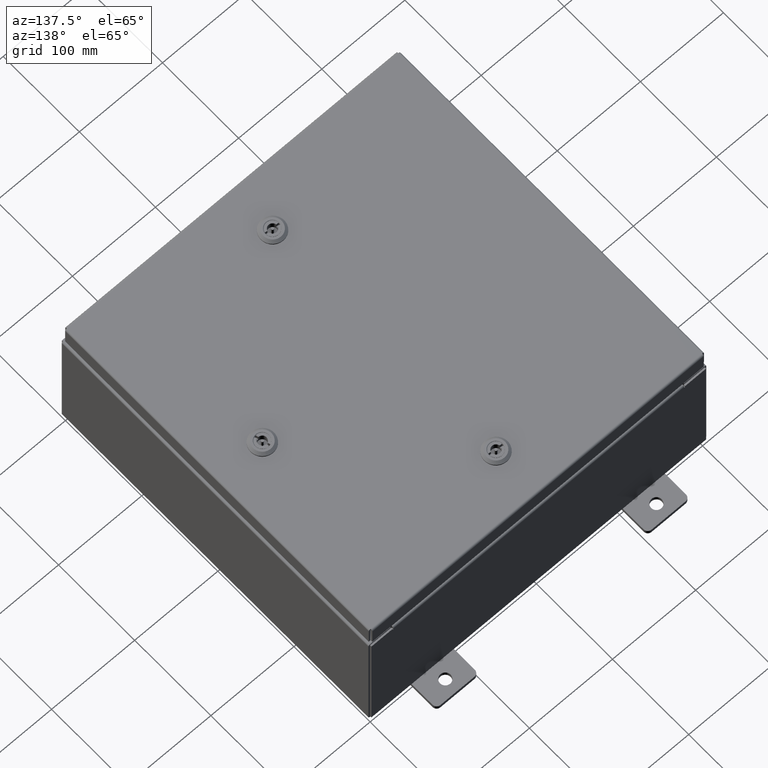
[diagram: clean part render]
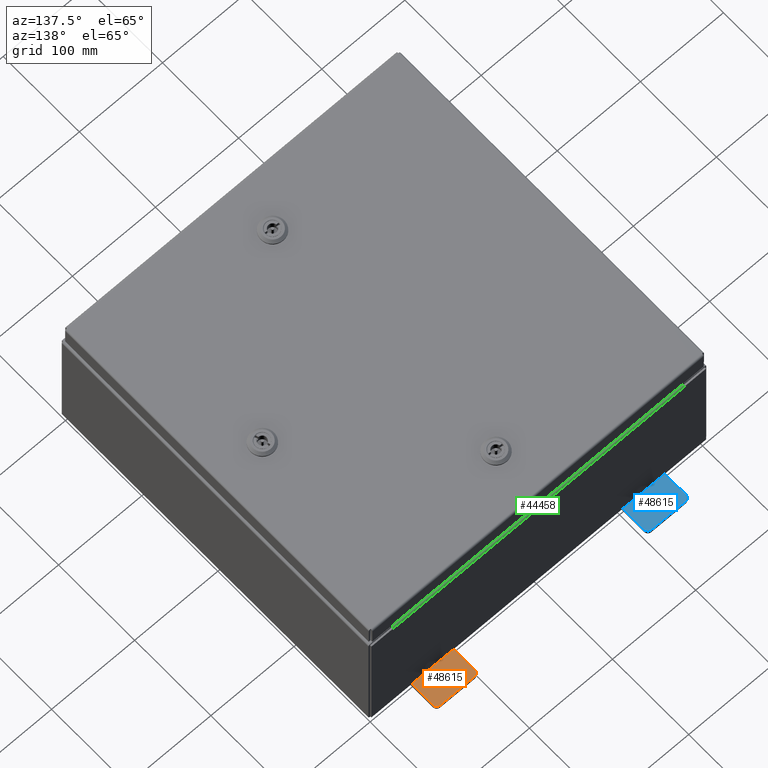
[diagram: same view with three faces highlighted in distinct colors, each labeled with its STEP entity id]
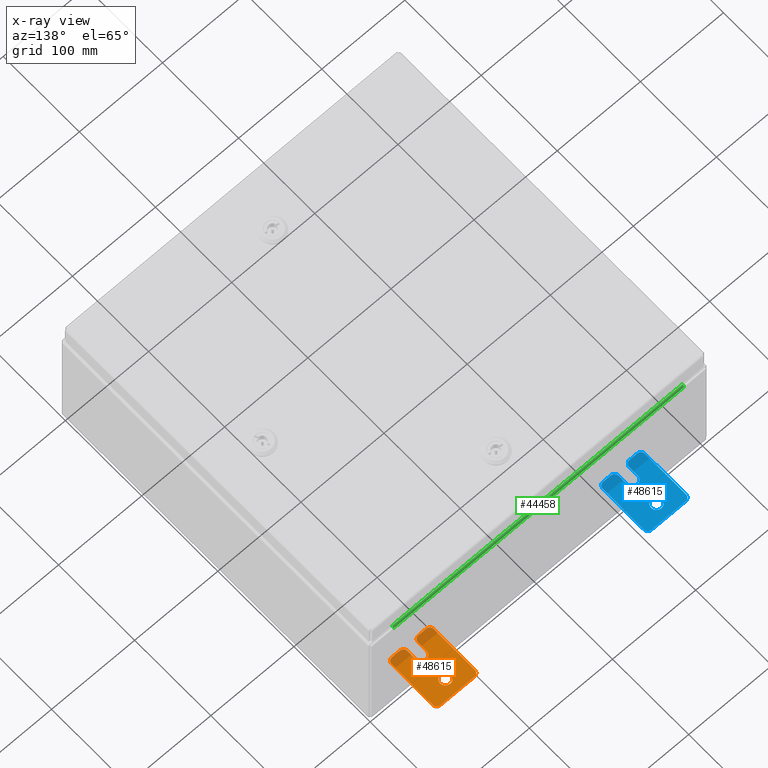
[diagram: x-ray of the same camera — body ghosted, the three highlighted faces saturated]
A machine part, auxiliary view with three faces highlighted in distinct colors.
The next image is the same camera in x-ray (body ghosted, the three faces saturated) — at least one of them is partly hidden behind the body in this view.
Their STEP definitions:

[orange] entity #48615 — the highlighted planar face has unit normal (0, 0, 1).
#376 = DIRECTION ( 'NONE',  ( 0.0000000000000000000, 1.639108796198553600E-015, 1.000000000000000000 ) ) ;
#781 = VERTEX_POINT ( 'NONE', #40573 ) ;
#939 = VERTEX_POINT ( 'NONE', #14107 ) ;
#1094 = VERTEX_POINT ( 'NONE', #38783 ) ;
#1914 = ORIENTED_EDGE ( 'NONE', *, *, #51974, .T. ) ;
#2067 = CARTESIAN_POINT ( 'NONE',  ( 0.0000000000000000000, 1.059999999999996300, 0.8099999999999938400 ) ) ;
#2090 = CARTESIAN_POINT ( 'NONE',  ( 0.0000000000000000000, -1.250000000000004700, -0.4400000000000002200 ) ) ;
#2940 = AXIS2_PLACEMENT_3D ( 'NONE', #6779, #9118, #8405 ) ;
#3745 = LINE ( 'NONE', #13815, #40833 ) ;
#4010 = DIRECTION ( 'NONE',  ( -0.0000000000000000000, 0.0000000000000000000, -1.000000000000000000 ) ) ;
#4321 = LINE ( 'NONE', #7290, #54153 ) ;
#4420 = EDGE_CURVE ( 'NONE', #55474, #61561, #31152, .T. ) ;
#4504 = EDGE_CURVE ( 'NONE', #27140, #24441, #19826, .T. ) ;
#5197 = AXIS2_PLACEMENT_3D ( 'NONE', #27364, #27150, #26948 ) ;
#5300 = AXIS2_PLACEMENT_3D ( 'NONE', #25176, #58881, #30043 ) ;
#6397 = ORIENTED_EDGE ( 'NONE', *, *, #45396, .T. ) ;
#6748 = LINE ( 'NONE', #38320, #56576 ) ;
#6779 = CARTESIAN_POINT ( 'NONE',  ( 0.0000000000000000000, -1.060000000000001600, 0.8099999999999978300 ) ) ;
#6940 = DIRECTION ( 'NONE',  ( 0.0000000000000000000, 0.0000000000000000000, -1.000000000000000000 ) ) ;
#7290 = CARTESIAN_POINT ( 'NONE',  ( 4.780733988912460100E-016, -0.6249999999999993300, -0.2499999999999993900 ) ) ;
#7335 = LINE ( 'NONE', #45862, #44422 ) ;
#7629 = CARTESIAN_POINT ( 'NONE',  ( 3.910348609313009100E-016, 0.6249999999999992200, -0.2499999999999999200 ) ) ;
#8172 = CARTESIAN_POINT ( 'NONE',  ( 0.0000000000000000000, -1.060000000000003400, -0.4400000000000005000 ) ) ;
#8405 = DIRECTION ( 'NONE',  ( 0.0000000000000000000, 0.0000000000000000000, -1.000000000000000000 ) ) ;
#9093 = FACE_BOUND ( 'NONE', #50554, .T. ) ;
#9118 = DIRECTION ( 'NONE',  ( 1.000000000000000000, 0.0000000000000000000, -0.0000000000000000000 ) ) ;
#9145 = CIRCLE ( 'NONE', #5300, 0.2499999999999999200 ) ;
#9423 = CARTESIAN_POINT ( 'NONE',  ( 1.928684683526972300E-016, -1.060000000000002100, 0.2500000000000005000 ) ) ;
#9869 = LINE ( 'NONE', #50349, #24269 ) ;
#10481 = EDGE_CURVE ( 'NONE', #61561, #27140, #7335, .T. ) ;
#10588 = CIRCLE ( 'NONE', #19626, 0.1900000000000011100 ) ;
#10762 = EDGE_CURVE ( 'NONE', #31649, #12635, #23954, .T. ) ;
#11031 = LINE ( 'NONE', #44166, #35268 ) ;
#11205 = ORIENTED_EDGE ( 'NONE', *, *, #60182, .T. ) ;
#12112 = DIRECTION ( 'NONE',  ( -6.556435184794182400E-016, -1.000000000000000000, -1.639108796198545600E-016 ) ) ;
#12635 = VERTEX_POINT ( 'NONE', #22544 ) ;
#12669 = AXIS2_PLACEMENT_3D ( 'NONE', #18521, #57292, #15808 ) ;
#13035 = DIRECTION ( 'NONE',  ( 0.0000000000000000000, 0.0000000000000000000, -1.000000000000000000 ) ) ;
#13705 = ORIENTED_EDGE ( 'NONE', *, *, #4504, .T. ) ;
#13815 = CARTESIAN_POINT ( 'NONE',  ( 0.0000000000000000000, -1.250000000000002200, 0.9999999999999992200 ) ) ;
#14107 = CARTESIAN_POINT ( 'NONE',  ( 0.0000000000000000000, 1.249999999999994700, -0.8100000000000092700 ) ) ;
#14184 = DIRECTION ( 'NONE',  ( 6.556435184794182400E-016, 1.000000000000000000, 0.0000000000000000000 ) ) ;
#14620 = ORIENTED_EDGE ( 'NONE', *, *, #50343, .T. ) ;
#14811 = DIRECTION ( 'NONE',  ( 1.000000000000000000, 0.0000000000000000000, -0.0000000000000000000 ) ) ;
#15808 = DIRECTION ( 'NONE',  ( 0.0000000000000000000, 0.0000000000000000000, -1.000000000000000000 ) ) ;
#16525 = DIRECTION ( 'NONE',  ( 0.0000000000000000000, -1.000000000000000000, 1.639108796198558100E-015 ) ) ;
#17126 = AXIS2_PLACEMENT_3D ( 'NONE', #8172, #42048, #13035 ) ;
#17256 = CIRCLE ( 'NONE', #53220, 0.1900000000000011100 ) ;
#17263 = EDGE_CURVE ( 'NONE', #23851, #19299, #37745, .T. ) ;
#17445 = AXIS2_PLACEMENT_3D ( 'NONE', #52897, #23973, #57686 ) ;
#17730 = CARTESIAN_POINT ( 'NONE',  ( 4.780733988912460100E-016, -0.6249999999999993300, -0.2499999999999998600 ) ) ;
#18188 = PLANE ( 'NONE',  #20768 ) ;
#18521 = CARTESIAN_POINT ( 'NONE',  ( 0.0000000000000000000, -1.060000000000002100, 0.4400000000000016700 ) ) ;
#18524 = ORIENTED_EDGE ( 'NONE', *, *, #43755, .T. ) ;
#18672 = CARTESIAN_POINT ( 'NONE',  ( 0.0000000000000000000, 1.249999999999997300, 0.8099999999999935000 ) ) ;
#19299 = VERTEX_POINT ( 'NONE', #2090 ) ;
#19626 = AXIS2_PLACEMENT_3D ( 'NONE', #43800, #14811, #48675 ) ;
#19826 = CIRCLE ( 'NONE', #12669, 0.1900000000000011400 ) ;
#20462 = FACE_OUTER_BOUND ( 'NONE', #48714, .T. ) ;
#20768 = AXIS2_PLACEMENT_3D ( 'NONE', #37634, #32942, #4010 ) ;
#20818 = CARTESIAN_POINT ( 'NONE',  ( 4.780733988912460100E-016, -0.6249999999999993300, 5.858939755051854500E-017 ) ) ;
#21161 = ORIENTED_EDGE ( 'NONE', *, *, #10762, .F. ) ;
#22431 = EDGE_CURVE ( 'NONE', #48614, #781, #11031, .T. ) ;
#22465 = CARTESIAN_POINT ( 'NONE',  ( 0.0000000000000000000, -1.250000000000003100, 0.4400000000000020000 ) ) ;
#22544 = CARTESIAN_POINT ( 'NONE',  ( 4.168508244714285900E-016, 0.6249999999999992200, 0.2499999999999999200 ) ) ;
#23851 = VERTEX_POINT ( 'NONE', #39981 ) ;
#23954 = CIRCLE ( 'NONE', #5197, 0.2499999999999999200 ) ;
#23973 = DIRECTION ( 'NONE',  ( 1.000000000000000000, 0.0000000000000000000, -0.0000000000000000000 ) ) ;
#24269 = VECTOR ( 'NONE', #16525, 39.37007874015748100 ) ;
#24441 = VERTEX_POINT ( 'NONE', #9423 ) ;
#24780 = VERTEX_POINT ( 'NONE', #36067 ) ;
#25156 = CIRCLE ( 'NONE', #27907, 0.2499999999999999200 ) ;
#25176 = CARTESIAN_POINT ( 'NONE',  ( 4.039428427013647300E-016, 0.6249999999999992200, -9.783840404509077400E-018 ) ) ;
#25662 = DIRECTION ( 'NONE',  ( -6.523827964459551700E-016, -1.000000000000000000, 0.0000000000000000000 ) ) ;
#26845 = ORIENTED_EDGE ( 'NONE', *, *, #10481, .T. ) ;
#26948 = DIRECTION ( 'NONE',  ( -5.163192708025533800E-017, 0.0000000000000000000, -1.000000000000000000 ) ) ;
#27140 = VERTEX_POINT ( 'NONE', #22465 ) ;
#27150 = DIRECTION ( 'NONE',  ( 1.000000000000000000, -0.0000000000000000000, -5.163192708025532000E-017 ) ) ;
#27364 = CARTESIAN_POINT ( 'NONE',  ( 4.039428427013647300E-016, 0.6249999999999992200, -9.783840404509077400E-018 ) ) ;
#27907 = AXIS2_PLACEMENT_3D ( 'NONE', #20818, #54545, #25662 ) ;
#28346 = ORIENTED_EDGE ( 'NONE', *, *, #38221, .T. ) ;
#29424 = ORIENTED_EDGE ( 'NONE', *, *, #60570, .T. ) ;
#29901 = VECTOR ( 'NONE', #376, 39.37007874015748100 ) ;
#30043 = DIRECTION ( 'NONE',  ( -5.163192708025533800E-017, 0.0000000000000000000, -1.000000000000000000 ) ) ;
#30657 = ORIENTED_EDGE ( 'NONE', *, *, #34220, .T. ) ;
#30949 = CARTESIAN_POINT ( 'NONE',  ( 0.0000000000000000000, -1.250000000000005300, -0.8100000000000047200 ) ) ;
#30955 = ORIENTED_EDGE ( 'NONE', *, *, #22431, .T. ) ;
#31152 = CIRCLE ( 'NONE', #2940, 0.1900000000000011100 ) ;
#31649 = VERTEX_POINT ( 'NONE', #7629 ) ;
#32942 = DIRECTION ( 'NONE',  ( 1.000000000000000000, 0.0000000000000000000, -0.0000000000000000000 ) ) ;
#33236 = DIRECTION ( 'NONE',  ( 0.0000000000000000000, -1.639108796198553600E-015, -1.000000000000000000 ) ) ;
#34220 = EDGE_CURVE ( 'NONE', #1094, #42528, #25156, .T. ) ;
#34338 = VERTEX_POINT ( 'NONE', #30949 ) ;
#35268 = VECTOR ( 'NONE', #58606, 39.37007874015748100 ) ;
#35336 = ORIENTED_EDGE ( 'NONE', *, *, #41677, .T. ) ;
#35872 = ORIENTED_EDGE ( 'NONE', *, *, #59706, .F. ) ;
#35883 = VERTEX_POINT ( 'NONE', #18672 ) ;
#35905 = DIRECTION ( 'NONE',  ( 1.000000000000000000, 0.0000000000000000000, -0.0000000000000000000 ) ) ;
#36067 = CARTESIAN_POINT ( 'NONE',  ( 0.0000000000000000000, 1.059999999999996500, 0.9999999999999953400 ) ) ;
#37634 = CARTESIAN_POINT ( 'NONE',  ( 0.0000000000000000000, 0.0000000000000000000, 0.0000000000000000000 ) ) ;
#37745 = CIRCLE ( 'NONE', #17126, 0.1900000000000011100 ) ;
#38221 = EDGE_CURVE ( 'NONE', #19299, #34338, #3745, .T. ) ;
#38320 = CARTESIAN_POINT ( 'NONE',  ( 6.829619984160658000E-017, -1.250000000000003800, 0.2500000000000005000 ) ) ;
#38783 = CARTESIAN_POINT ( 'NONE',  ( 0.0000000000000000000, -0.6249999999999992200, 0.2500000000000005000 ) ) ;
#39981 = CARTESIAN_POINT ( 'NONE',  ( 1.928684683526964400E-016, -1.060000000000003400, -0.2499999999999994400 ) ) ;
#40573 = CARTESIAN_POINT ( 'NONE',  ( 0.0000000000000000000, 1.059999999999993400, -1.000000000000010000 ) ) ;
#40833 = VECTOR ( 'NONE', #33236, 39.37007874015748100 ) ;
#40995 = CARTESIAN_POINT ( 'NONE',  ( 0.0000000000000000000, -1.250000000000002400, 0.8099999999999980500 ) ) ;
#41677 = EDGE_CURVE ( 'NONE', #42528, #23851, #4321, .T. ) ;
#42048 = DIRECTION ( 'NONE',  ( 1.000000000000000000, 0.0000000000000000000, -0.0000000000000000000 ) ) ;
#42528 = VERTEX_POINT ( 'NONE', #17730 ) ;
#43739 = CARTESIAN_POINT ( 'NONE',  ( 0.0000000000000000000, 1.249999999999994200, -1.000000000000010400 ) ) ;
#43755 = EDGE_CURVE ( 'NONE', #939, #35883, #57036, .T. ) ;
#43800 = CARTESIAN_POINT ( 'NONE',  ( 0.0000000000000000000, -1.060000000000004100, -0.8100000000000050500 ) ) ;
#44166 = CARTESIAN_POINT ( 'NONE',  ( 0.0000000000000000000, -1.250000000000005600, -1.000000000000006200 ) ) ;
#44422 = VECTOR ( 'NONE', #52664, 39.37007874015748100 ) ;
#45396 = EDGE_CURVE ( 'NONE', #781, #939, #51561, .T. ) ;
#45862 = CARTESIAN_POINT ( 'NONE',  ( 0.0000000000000000000, -1.250000000000002200, 0.9999999999999992200 ) ) ;
#46530 = ORIENTED_EDGE ( 'NONE', *, *, #4420, .T. ) ;
#48614 = VERTEX_POINT ( 'NONE', #52187 ) ;
#48615 = ADVANCED_FACE ( 'NONE', ( #9093, #20462 ), #18188, .T. ) ;
#48675 = DIRECTION ( 'NONE',  ( 0.0000000000000000000, 0.0000000000000000000, -1.000000000000000000 ) ) ;
#48714 = EDGE_LOOP ( 'NONE', ( #11205, #46530, #26845, #13705, #14620, #30657, #35336, #51799, #28346, #29424, #30955, #6397, #18524, #1914 ) ) ;
#50343 = EDGE_CURVE ( 'NONE', #24441, #1094, #6748, .T. ) ;
#50349 = CARTESIAN_POINT ( 'NONE',  ( 0.0000000000000000000, 1.249999999999997600, 0.9999999999999951200 ) ) ;
#50554 = EDGE_LOOP ( 'NONE', ( #21161, #35872 ) ) ;
#51561 = CIRCLE ( 'NONE', #17445, 0.1900000000000011100 ) ;
#51799 = ORIENTED_EDGE ( 'NONE', *, *, #17263, .T. ) ;
#51974 = EDGE_CURVE ( 'NONE', #35883, #24780, #17256, .T. ) ;
#52187 = CARTESIAN_POINT ( 'NONE',  ( 0.0000000000000000000, -1.060000000000004500, -1.000000000000006400 ) ) ;
#52664 = DIRECTION ( 'NONE',  ( 0.0000000000000000000, -1.639108796198553600E-015, -1.000000000000000000 ) ) ;
#52897 = CARTESIAN_POINT ( 'NONE',  ( 0.0000000000000000000, 1.059999999999993600, -0.8100000000000089400 ) ) ;
#53220 = AXIS2_PLACEMENT_3D ( 'NONE', #2067, #35905, #6940 ) ;
#54153 = VECTOR ( 'NONE', #12112, 39.37007874015748100 ) ;
#54545 = DIRECTION ( 'NONE',  ( -1.000000000000000000, 6.523827964459549700E-016, 5.163192708025532000E-017 ) ) ;
#55474 = VERTEX_POINT ( 'NONE', #56380 ) ;
#56380 = CARTESIAN_POINT ( 'NONE',  ( 0.0000000000000000000, -1.060000000000001200, 0.9999999999999988900 ) ) ;
#56576 = VECTOR ( 'NONE', #14184, 39.37007874015748100 ) ;
#57036 = LINE ( 'NONE', #43739, #29901 ) ;
#57292 = DIRECTION ( 'NONE',  ( 1.000000000000000000, 0.0000000000000000000, -0.0000000000000000000 ) ) ;
#57686 = DIRECTION ( 'NONE',  ( 0.0000000000000000000, 0.0000000000000000000, -1.000000000000000000 ) ) ;
#58606 = DIRECTION ( 'NONE',  ( 0.0000000000000000000, 1.000000000000000000, -1.639108796198558100E-015 ) ) ;
#58881 = DIRECTION ( 'NONE',  ( 1.000000000000000000, -0.0000000000000000000, -5.163192708025532000E-017 ) ) ;
#59706 = EDGE_CURVE ( 'NONE', #12635, #31649, #9145, .T. ) ;
#60182 = EDGE_CURVE ( 'NONE', #24780, #55474, #9869, .T. ) ;
#60570 = EDGE_CURVE ( 'NONE', #34338, #48614, #10588, .T. ) ;
#61561 = VERTEX_POINT ( 'NONE', #40995 ) ;

[blue] entity #48615 — the highlighted planar face has unit normal (0, 0, 1).
#376 = DIRECTION ( 'NONE',  ( 0.0000000000000000000, 1.639108796198553600E-015, 1.000000000000000000 ) ) ;
#781 = VERTEX_POINT ( 'NONE', #40573 ) ;
#939 = VERTEX_POINT ( 'NONE', #14107 ) ;
#1094 = VERTEX_POINT ( 'NONE', #38783 ) ;
#1914 = ORIENTED_EDGE ( 'NONE', *, *, #51974, .T. ) ;
#2067 = CARTESIAN_POINT ( 'NONE',  ( 0.0000000000000000000, 1.059999999999996300, 0.8099999999999938400 ) ) ;
#2090 = CARTESIAN_POINT ( 'NONE',  ( 0.0000000000000000000, -1.250000000000004700, -0.4400000000000002200 ) ) ;
#2940 = AXIS2_PLACEMENT_3D ( 'NONE', #6779, #9118, #8405 ) ;
#3745 = LINE ( 'NONE', #13815, #40833 ) ;
#4010 = DIRECTION ( 'NONE',  ( -0.0000000000000000000, 0.0000000000000000000, -1.000000000000000000 ) ) ;
#4321 = LINE ( 'NONE', #7290, #54153 ) ;
#4420 = EDGE_CURVE ( 'NONE', #55474, #61561, #31152, .T. ) ;
#4504 = EDGE_CURVE ( 'NONE', #27140, #24441, #19826, .T. ) ;
#5197 = AXIS2_PLACEMENT_3D ( 'NONE', #27364, #27150, #26948 ) ;
#5300 = AXIS2_PLACEMENT_3D ( 'NONE', #25176, #58881, #30043 ) ;
#6397 = ORIENTED_EDGE ( 'NONE', *, *, #45396, .T. ) ;
#6748 = LINE ( 'NONE', #38320, #56576 ) ;
#6779 = CARTESIAN_POINT ( 'NONE',  ( 0.0000000000000000000, -1.060000000000001600, 0.8099999999999978300 ) ) ;
#6940 = DIRECTION ( 'NONE',  ( 0.0000000000000000000, 0.0000000000000000000, -1.000000000000000000 ) ) ;
#7290 = CARTESIAN_POINT ( 'NONE',  ( 4.780733988912460100E-016, -0.6249999999999993300, -0.2499999999999993900 ) ) ;
#7335 = LINE ( 'NONE', #45862, #44422 ) ;
#7629 = CARTESIAN_POINT ( 'NONE',  ( 3.910348609313009100E-016, 0.6249999999999992200, -0.2499999999999999200 ) ) ;
#8172 = CARTESIAN_POINT ( 'NONE',  ( 0.0000000000000000000, -1.060000000000003400, -0.4400000000000005000 ) ) ;
#8405 = DIRECTION ( 'NONE',  ( 0.0000000000000000000, 0.0000000000000000000, -1.000000000000000000 ) ) ;
#9093 = FACE_BOUND ( 'NONE', #50554, .T. ) ;
#9118 = DIRECTION ( 'NONE',  ( 1.000000000000000000, 0.0000000000000000000, -0.0000000000000000000 ) ) ;
#9145 = CIRCLE ( 'NONE', #5300, 0.2499999999999999200 ) ;
#9423 = CARTESIAN_POINT ( 'NONE',  ( 1.928684683526972300E-016, -1.060000000000002100, 0.2500000000000005000 ) ) ;
#9869 = LINE ( 'NONE', #50349, #24269 ) ;
#10481 = EDGE_CURVE ( 'NONE', #61561, #27140, #7335, .T. ) ;
#10588 = CIRCLE ( 'NONE', #19626, 0.1900000000000011100 ) ;
#10762 = EDGE_CURVE ( 'NONE', #31649, #12635, #23954, .T. ) ;
#11031 = LINE ( 'NONE', #44166, #35268 ) ;
#11205 = ORIENTED_EDGE ( 'NONE', *, *, #60182, .T. ) ;
#12112 = DIRECTION ( 'NONE',  ( -6.556435184794182400E-016, -1.000000000000000000, -1.639108796198545600E-016 ) ) ;
#12635 = VERTEX_POINT ( 'NONE', #22544 ) ;
#12669 = AXIS2_PLACEMENT_3D ( 'NONE', #18521, #57292, #15808 ) ;
#13035 = DIRECTION ( 'NONE',  ( 0.0000000000000000000, 0.0000000000000000000, -1.000000000000000000 ) ) ;
#13705 = ORIENTED_EDGE ( 'NONE', *, *, #4504, .T. ) ;
#13815 = CARTESIAN_POINT ( 'NONE',  ( 0.0000000000000000000, -1.250000000000002200, 0.9999999999999992200 ) ) ;
#14107 = CARTESIAN_POINT ( 'NONE',  ( 0.0000000000000000000, 1.249999999999994700, -0.8100000000000092700 ) ) ;
#14184 = DIRECTION ( 'NONE',  ( 6.556435184794182400E-016, 1.000000000000000000, 0.0000000000000000000 ) ) ;
#14620 = ORIENTED_EDGE ( 'NONE', *, *, #50343, .T. ) ;
#14811 = DIRECTION ( 'NONE',  ( 1.000000000000000000, 0.0000000000000000000, -0.0000000000000000000 ) ) ;
#15808 = DIRECTION ( 'NONE',  ( 0.0000000000000000000, 0.0000000000000000000, -1.000000000000000000 ) ) ;
#16525 = DIRECTION ( 'NONE',  ( 0.0000000000000000000, -1.000000000000000000, 1.639108796198558100E-015 ) ) ;
#17126 = AXIS2_PLACEMENT_3D ( 'NONE', #8172, #42048, #13035 ) ;
#17256 = CIRCLE ( 'NONE', #53220, 0.1900000000000011100 ) ;
#17263 = EDGE_CURVE ( 'NONE', #23851, #19299, #37745, .T. ) ;
#17445 = AXIS2_PLACEMENT_3D ( 'NONE', #52897, #23973, #57686 ) ;
#17730 = CARTESIAN_POINT ( 'NONE',  ( 4.780733988912460100E-016, -0.6249999999999993300, -0.2499999999999998600 ) ) ;
#18188 = PLANE ( 'NONE',  #20768 ) ;
#18521 = CARTESIAN_POINT ( 'NONE',  ( 0.0000000000000000000, -1.060000000000002100, 0.4400000000000016700 ) ) ;
#18524 = ORIENTED_EDGE ( 'NONE', *, *, #43755, .T. ) ;
#18672 = CARTESIAN_POINT ( 'NONE',  ( 0.0000000000000000000, 1.249999999999997300, 0.8099999999999935000 ) ) ;
#19299 = VERTEX_POINT ( 'NONE', #2090 ) ;
#19626 = AXIS2_PLACEMENT_3D ( 'NONE', #43800, #14811, #48675 ) ;
#19826 = CIRCLE ( 'NONE', #12669, 0.1900000000000011400 ) ;
#20462 = FACE_OUTER_BOUND ( 'NONE', #48714, .T. ) ;
#20768 = AXIS2_PLACEMENT_3D ( 'NONE', #37634, #32942, #4010 ) ;
#20818 = CARTESIAN_POINT ( 'NONE',  ( 4.780733988912460100E-016, -0.6249999999999993300, 5.858939755051854500E-017 ) ) ;
#21161 = ORIENTED_EDGE ( 'NONE', *, *, #10762, .F. ) ;
#22431 = EDGE_CURVE ( 'NONE', #48614, #781, #11031, .T. ) ;
#22465 = CARTESIAN_POINT ( 'NONE',  ( 0.0000000000000000000, -1.250000000000003100, 0.4400000000000020000 ) ) ;
#22544 = CARTESIAN_POINT ( 'NONE',  ( 4.168508244714285900E-016, 0.6249999999999992200, 0.2499999999999999200 ) ) ;
#23851 = VERTEX_POINT ( 'NONE', #39981 ) ;
#23954 = CIRCLE ( 'NONE', #5197, 0.2499999999999999200 ) ;
#23973 = DIRECTION ( 'NONE',  ( 1.000000000000000000, 0.0000000000000000000, -0.0000000000000000000 ) ) ;
#24269 = VECTOR ( 'NONE', #16525, 39.37007874015748100 ) ;
#24441 = VERTEX_POINT ( 'NONE', #9423 ) ;
#24780 = VERTEX_POINT ( 'NONE', #36067 ) ;
#25156 = CIRCLE ( 'NONE', #27907, 0.2499999999999999200 ) ;
#25176 = CARTESIAN_POINT ( 'NONE',  ( 4.039428427013647300E-016, 0.6249999999999992200, -9.783840404509077400E-018 ) ) ;
#25662 = DIRECTION ( 'NONE',  ( -6.523827964459551700E-016, -1.000000000000000000, 0.0000000000000000000 ) ) ;
#26845 = ORIENTED_EDGE ( 'NONE', *, *, #10481, .T. ) ;
#26948 = DIRECTION ( 'NONE',  ( -5.163192708025533800E-017, 0.0000000000000000000, -1.000000000000000000 ) ) ;
#27140 = VERTEX_POINT ( 'NONE', #22465 ) ;
#27150 = DIRECTION ( 'NONE',  ( 1.000000000000000000, -0.0000000000000000000, -5.163192708025532000E-017 ) ) ;
#27364 = CARTESIAN_POINT ( 'NONE',  ( 4.039428427013647300E-016, 0.6249999999999992200, -9.783840404509077400E-018 ) ) ;
#27907 = AXIS2_PLACEMENT_3D ( 'NONE', #20818, #54545, #25662 ) ;
#28346 = ORIENTED_EDGE ( 'NONE', *, *, #38221, .T. ) ;
#29424 = ORIENTED_EDGE ( 'NONE', *, *, #60570, .T. ) ;
#29901 = VECTOR ( 'NONE', #376, 39.37007874015748100 ) ;
#30043 = DIRECTION ( 'NONE',  ( -5.163192708025533800E-017, 0.0000000000000000000, -1.000000000000000000 ) ) ;
#30657 = ORIENTED_EDGE ( 'NONE', *, *, #34220, .T. ) ;
#30949 = CARTESIAN_POINT ( 'NONE',  ( 0.0000000000000000000, -1.250000000000005300, -0.8100000000000047200 ) ) ;
#30955 = ORIENTED_EDGE ( 'NONE', *, *, #22431, .T. ) ;
#31152 = CIRCLE ( 'NONE', #2940, 0.1900000000000011100 ) ;
#31649 = VERTEX_POINT ( 'NONE', #7629 ) ;
#32942 = DIRECTION ( 'NONE',  ( 1.000000000000000000, 0.0000000000000000000, -0.0000000000000000000 ) ) ;
#33236 = DIRECTION ( 'NONE',  ( 0.0000000000000000000, -1.639108796198553600E-015, -1.000000000000000000 ) ) ;
#34220 = EDGE_CURVE ( 'NONE', #1094, #42528, #25156, .T. ) ;
#34338 = VERTEX_POINT ( 'NONE', #30949 ) ;
#35268 = VECTOR ( 'NONE', #58606, 39.37007874015748100 ) ;
#35336 = ORIENTED_EDGE ( 'NONE', *, *, #41677, .T. ) ;
#35872 = ORIENTED_EDGE ( 'NONE', *, *, #59706, .F. ) ;
#35883 = VERTEX_POINT ( 'NONE', #18672 ) ;
#35905 = DIRECTION ( 'NONE',  ( 1.000000000000000000, 0.0000000000000000000, -0.0000000000000000000 ) ) ;
#36067 = CARTESIAN_POINT ( 'NONE',  ( 0.0000000000000000000, 1.059999999999996500, 0.9999999999999953400 ) ) ;
#37634 = CARTESIAN_POINT ( 'NONE',  ( 0.0000000000000000000, 0.0000000000000000000, 0.0000000000000000000 ) ) ;
#37745 = CIRCLE ( 'NONE', #17126, 0.1900000000000011100 ) ;
#38221 = EDGE_CURVE ( 'NONE', #19299, #34338, #3745, .T. ) ;
#38320 = CARTESIAN_POINT ( 'NONE',  ( 6.829619984160658000E-017, -1.250000000000003800, 0.2500000000000005000 ) ) ;
#38783 = CARTESIAN_POINT ( 'NONE',  ( 0.0000000000000000000, -0.6249999999999992200, 0.2500000000000005000 ) ) ;
#39981 = CARTESIAN_POINT ( 'NONE',  ( 1.928684683526964400E-016, -1.060000000000003400, -0.2499999999999994400 ) ) ;
#40573 = CARTESIAN_POINT ( 'NONE',  ( 0.0000000000000000000, 1.059999999999993400, -1.000000000000010000 ) ) ;
#40833 = VECTOR ( 'NONE', #33236, 39.37007874015748100 ) ;
#40995 = CARTESIAN_POINT ( 'NONE',  ( 0.0000000000000000000, -1.250000000000002400, 0.8099999999999980500 ) ) ;
#41677 = EDGE_CURVE ( 'NONE', #42528, #23851, #4321, .T. ) ;
#42048 = DIRECTION ( 'NONE',  ( 1.000000000000000000, 0.0000000000000000000, -0.0000000000000000000 ) ) ;
#42528 = VERTEX_POINT ( 'NONE', #17730 ) ;
#43739 = CARTESIAN_POINT ( 'NONE',  ( 0.0000000000000000000, 1.249999999999994200, -1.000000000000010400 ) ) ;
#43755 = EDGE_CURVE ( 'NONE', #939, #35883, #57036, .T. ) ;
#43800 = CARTESIAN_POINT ( 'NONE',  ( 0.0000000000000000000, -1.060000000000004100, -0.8100000000000050500 ) ) ;
#44166 = CARTESIAN_POINT ( 'NONE',  ( 0.0000000000000000000, -1.250000000000005600, -1.000000000000006200 ) ) ;
#44422 = VECTOR ( 'NONE', #52664, 39.37007874015748100 ) ;
#45396 = EDGE_CURVE ( 'NONE', #781, #939, #51561, .T. ) ;
#45862 = CARTESIAN_POINT ( 'NONE',  ( 0.0000000000000000000, -1.250000000000002200, 0.9999999999999992200 ) ) ;
#46530 = ORIENTED_EDGE ( 'NONE', *, *, #4420, .T. ) ;
#48614 = VERTEX_POINT ( 'NONE', #52187 ) ;
#48615 = ADVANCED_FACE ( 'NONE', ( #9093, #20462 ), #18188, .T. ) ;
#48675 = DIRECTION ( 'NONE',  ( 0.0000000000000000000, 0.0000000000000000000, -1.000000000000000000 ) ) ;
#48714 = EDGE_LOOP ( 'NONE', ( #11205, #46530, #26845, #13705, #14620, #30657, #35336, #51799, #28346, #29424, #30955, #6397, #18524, #1914 ) ) ;
#50343 = EDGE_CURVE ( 'NONE', #24441, #1094, #6748, .T. ) ;
#50349 = CARTESIAN_POINT ( 'NONE',  ( 0.0000000000000000000, 1.249999999999997600, 0.9999999999999951200 ) ) ;
#50554 = EDGE_LOOP ( 'NONE', ( #21161, #35872 ) ) ;
#51561 = CIRCLE ( 'NONE', #17445, 0.1900000000000011100 ) ;
#51799 = ORIENTED_EDGE ( 'NONE', *, *, #17263, .T. ) ;
#51974 = EDGE_CURVE ( 'NONE', #35883, #24780, #17256, .T. ) ;
#52187 = CARTESIAN_POINT ( 'NONE',  ( 0.0000000000000000000, -1.060000000000004500, -1.000000000000006400 ) ) ;
#52664 = DIRECTION ( 'NONE',  ( 0.0000000000000000000, -1.639108796198553600E-015, -1.000000000000000000 ) ) ;
#52897 = CARTESIAN_POINT ( 'NONE',  ( 0.0000000000000000000, 1.059999999999993600, -0.8100000000000089400 ) ) ;
#53220 = AXIS2_PLACEMENT_3D ( 'NONE', #2067, #35905, #6940 ) ;
#54153 = VECTOR ( 'NONE', #12112, 39.37007874015748100 ) ;
#54545 = DIRECTION ( 'NONE',  ( -1.000000000000000000, 6.523827964459549700E-016, 5.163192708025532000E-017 ) ) ;
#55474 = VERTEX_POINT ( 'NONE', #56380 ) ;
#56380 = CARTESIAN_POINT ( 'NONE',  ( 0.0000000000000000000, -1.060000000000001200, 0.9999999999999988900 ) ) ;
#56576 = VECTOR ( 'NONE', #14184, 39.37007874015748100 ) ;
#57036 = LINE ( 'NONE', #43739, #29901 ) ;
#57292 = DIRECTION ( 'NONE',  ( 1.000000000000000000, 0.0000000000000000000, -0.0000000000000000000 ) ) ;
#57686 = DIRECTION ( 'NONE',  ( 0.0000000000000000000, 0.0000000000000000000, -1.000000000000000000 ) ) ;
#58606 = DIRECTION ( 'NONE',  ( 0.0000000000000000000, 1.000000000000000000, -1.639108796198558100E-015 ) ) ;
#58881 = DIRECTION ( 'NONE',  ( 1.000000000000000000, -0.0000000000000000000, -5.163192708025532000E-017 ) ) ;
#59706 = EDGE_CURVE ( 'NONE', #12635, #31649, #9145, .T. ) ;
#60182 = EDGE_CURVE ( 'NONE', #24780, #55474, #9869, .T. ) ;
#60570 = EDGE_CURVE ( 'NONE', #34338, #48614, #10588, .T. ) ;
#61561 = VERTEX_POINT ( 'NONE', #40995 ) ;

[green] entity #44458 — the highlighted cylindrical surface (edge-blend (fillet) strip) has radius 2.2276 mm, axis along (-1, -0, -0).
#1690 = CIRCLE ( 'NONE', #33310, 0.08770000000000026400 ) ;
#1793 = CARTESIAN_POINT ( 'NONE',  ( 6.887200000000000000, 0.0000000000000000000, 2.912300000000000600 ) ) ;
#4150 = EDGE_CURVE ( 'NONE', #19941, #61804, #1690, .T. ) ;
#7149 = LINE ( 'NONE', #47136, #44241 ) ;
#10609 = CARTESIAN_POINT ( 'NONE',  ( -6.887199999999998200, -0.08770000000000026400, 2.912300000000000600 ) ) ;
#11217 = DIRECTION ( 'NONE',  ( 1.000000000000000000, 0.0000000000000000000, 0.0000000000000000000 ) ) ;
#11666 = FACE_OUTER_BOUND ( 'NONE', #40246, .T. ) ;
#13655 = EDGE_CURVE ( 'NONE', #61804, #56801, #7149, .T. ) ;
#15513 = DIRECTION ( 'NONE',  ( 0.0000000000000000000, 0.0000000000000000000, 1.000000000000000000 ) ) ;
#15865 = ORIENTED_EDGE ( 'NONE', *, *, #42147, .F. ) ;
#16848 = ORIENTED_EDGE ( 'NONE', *, *, #20489, .F. ) ;
#19474 = DIRECTION ( 'NONE',  ( 0.0000000000000000000, 3.309679011708404900E-015, 1.000000000000000000 ) ) ;
#19941 = VERTEX_POINT ( 'NONE', #1793 ) ;
#20489 = EDGE_CURVE ( 'NONE', #36237, #19941, #61002, .T. ) ;
#20976 = CARTESIAN_POINT ( 'NONE',  ( -6.887200000000000000, -1.707404996040164500E-016, 2.912300000000000600 ) ) ;
#25030 = AXIS2_PLACEMENT_3D ( 'NONE', #10609, #44489, #15513 ) ;
#29205 = DIRECTION ( 'NONE',  ( -1.000000000000000000, -0.0000000000000000000, -0.0000000000000000000 ) ) ;
#33310 = AXIS2_PLACEMENT_3D ( 'NONE', #54673, #54478, #54282 ) ;
#34952 = CARTESIAN_POINT ( 'NONE',  ( -6.887200000000000000, -0.08770000000000026400, 3.000000000000000900 ) ) ;
#35311 = CIRCLE ( 'NONE', #25030, 0.08770000000000026400 ) ;
#36237 = VERTEX_POINT ( 'NONE', #49823 ) ;
#40246 = EDGE_LOOP ( 'NONE', ( #16848, #15865, #41216, #56157 ) ) ;
#41216 = ORIENTED_EDGE ( 'NONE', *, *, #13655, .F. ) ;
#42147 = EDGE_CURVE ( 'NONE', #56801, #36237, #35311, .T. ) ;
#44241 = VECTOR ( 'NONE', #45973, 39.37007874015748100 ) ;
#44458 = ADVANCED_FACE ( 'NONE', ( #11666 ), #59977, .T. ) ;
#44489 = DIRECTION ( 'NONE',  ( -1.000000000000000000, -0.0000000000000000000, -0.0000000000000000000 ) ) ;
#45973 = DIRECTION ( 'NONE',  ( -1.000000000000000000, 0.0000000000000000000, 0.0000000000000000000 ) ) ;
#47136 = CARTESIAN_POINT ( 'NONE',  ( 0.0000000000000000000, -0.08770000000000026400, 3.000000000000001300 ) ) ;
#48271 = VECTOR ( 'NONE', #11217, 39.37007874015748100 ) ;
#49823 = CARTESIAN_POINT ( 'NONE',  ( -6.887199999999998200, -1.707404996040164500E-016, 2.912300000000000600 ) ) ;
#50215 = AXIS2_PLACEMENT_3D ( 'NONE', #58031, #29205, #19474 ) ;
#54282 = DIRECTION ( 'NONE',  ( 0.0000000000000000000, -1.752183006198567300E-015, 1.000000000000000000 ) ) ;
#54478 = DIRECTION ( 'NONE',  ( 1.000000000000000000, 0.0000000000000000000, 0.0000000000000000000 ) ) ;
#54673 = CARTESIAN_POINT ( 'NONE',  ( 6.887200000000000000, -0.08770000000000026400, 2.912300000000000600 ) ) ;
#56157 = ORIENTED_EDGE ( 'NONE', *, *, #4150, .F. ) ;
#56801 = VERTEX_POINT ( 'NONE', #34952 ) ;
#58031 = CARTESIAN_POINT ( 'NONE',  ( -6.887200000000000000, -0.08770000000000026400, 2.912300000000000600 ) ) ;
#59977 = CYLINDRICAL_SURFACE ( 'NONE', #50215, 0.08770000000000026400 ) ;
#61002 = LINE ( 'NONE', #20976, #48271 ) ;
#61170 = CARTESIAN_POINT ( 'NONE',  ( 6.887200000000000000, -0.08769999999999993100, 3.000000000000000900 ) ) ;
#61804 = VERTEX_POINT ( 'NONE', #61170 ) ;